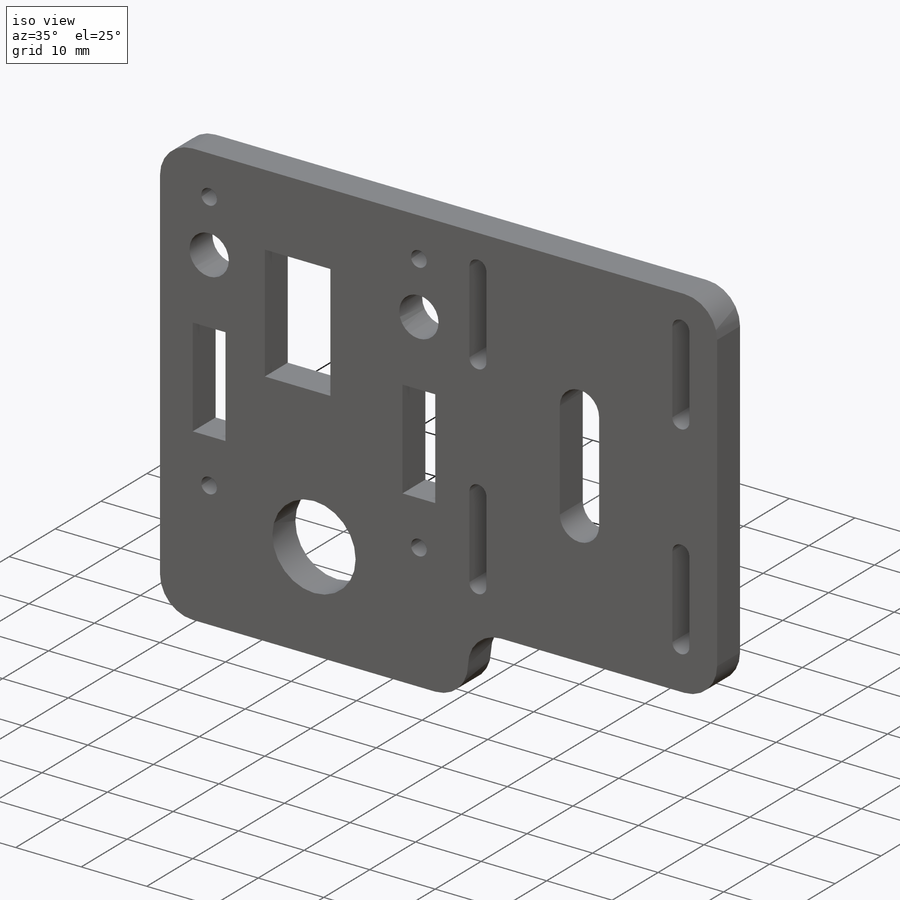
[diagram: iso view]
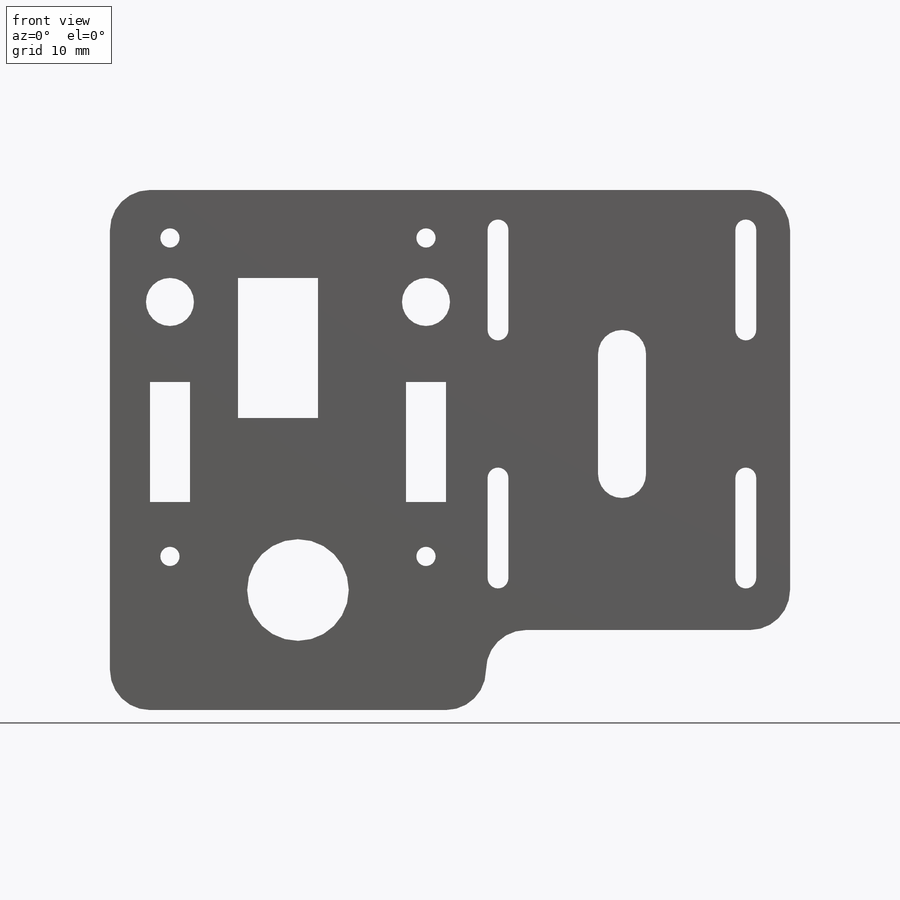
[diagram: front view]
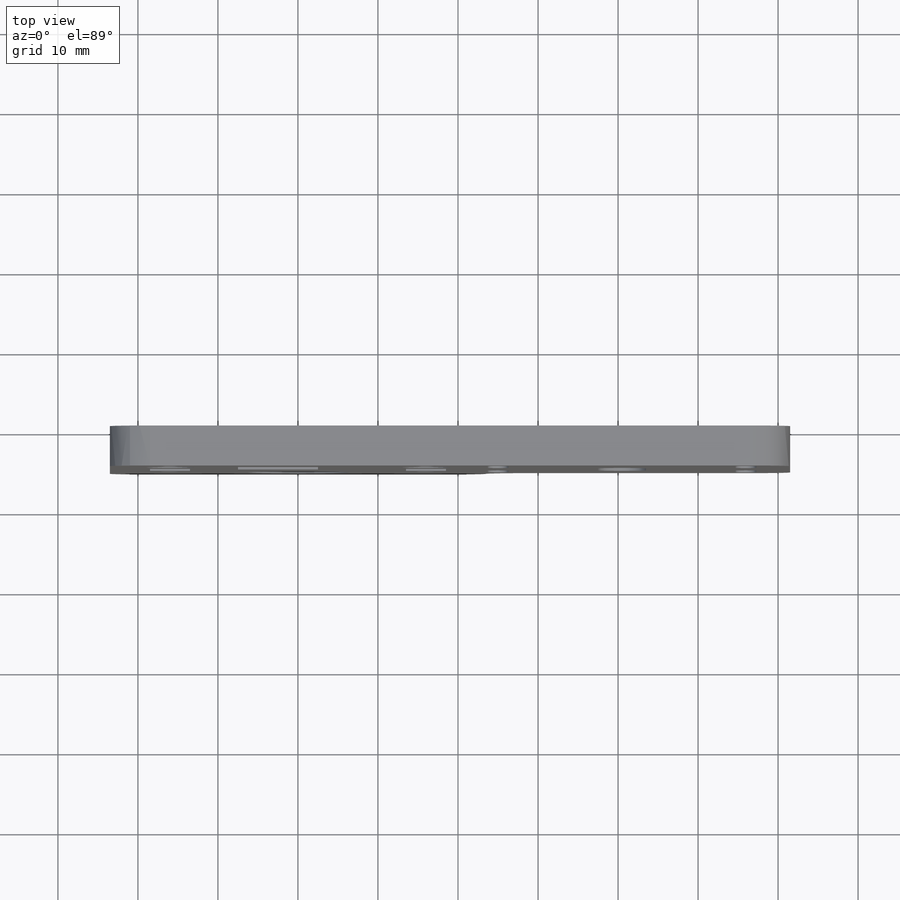
[diagram: top view]
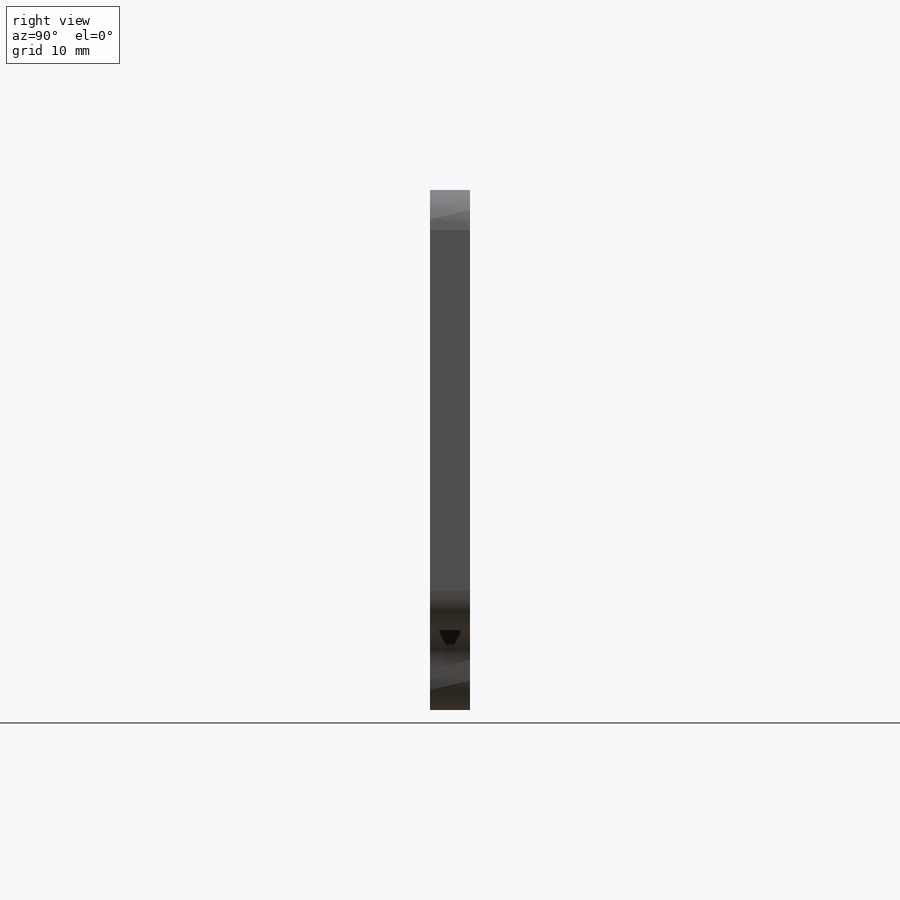
[diagram: right view]
SOLIDWORKS PART (.sldprt)
format: sldprt  version: not decoded by parser v0  size: 355,840 bytes
history: native  units: mm
features: sketch x2, extrude x2, material x1, fillet x1 (+16 scaffold rows collapsed)
feature tree (22):
  scaffold x16  (default folders/planes/origin — collapsed)
  material  "Acrylic (Medium-high impact)"
  sketch  "Sketch1"  dims[c1.D2=3.0mm c1.D3=3.0mm c1.D4=6.0mm c1.D16=12.7mm c1.D20=4.0mm c1.D22=2.0mm c1.D18=7.0mm c2.D20=1.25mm c2.D19=6.0mm c2.D21=1.5mm c3.D19=4.0mm c3.D4=2.4mm c3.D1=15.0mm c3.D5=5.0mm c3.D6=7.0mm c3.D7=8.0mm c3.D8=10.0mm c3.D9=10.0mm c3.D10=8.0mm c3.D11=6.0mm c3.D12=17.5mm c3.D13=5.0mm c3.D14=3.0mm c3.D15=23.5mm c3.D17=14.0mm c4.D6=16.0mm c4.D10=15.0mm c4.D18=25.0mm c4.D19=15.0mm c4.D21=20.0mm c4.D23=7.5mm c5.D19=10.0mm c5.D20=35.0mm c6.D19=7.0mm c6.D21=2.5mm c6.D22=11.5mm c6.D23=11.5mm c7.D22=11.5mm c7.D24=40.0mm c7.D25=23.0mm c7.D26=17.5mm c7.D12=17.5mm c7.D13=10.0mm c7.D14=6.0mm c7.D27=3.0mm c7.D28=14.0mm c7.D7=49.0mm c7.D8=50.0mm c7.D9=130.0mm c7.D10=6.0mm c7.D11=8.0mm c7.D17=10.0mm c7.D18=6.8mm c7.D20=10.0mm c8.D22=13.0mm c8.D23=10.0mm c8.D25=13.0mm c8.D26=20.0mm c8.D6=5.0mm c8.D9=15.0mm c8.D3=65.0mm c8.D24=2.0]
  extrude  "Boss-Extrude1"  Depth=5mm
  sketch  "Sketch2"  dims[c1.D2=3.0mm c1.D7=1.3mm c1.D1=38.0mm c1.D3=15.0mm c1.D4=12.5mm c1.D5=15.5mm c1.D6=15.5mm c1.D8=~3.857411mm c1.D10=55.0mm c1.D11=5.0mm c1.D12=17.0mm c1.D9=2.0 c2.D8=2.0 c2.D9=2.0]
  extrude  "Boss-Extrude2"  Depth=5mm
  fillet  "Fillet1"  Radius=5mm
decode coverage: 5 of 5 modeling features carry decoded parameters
note: ~ marks probable driven/reference dimensions
note: suppression state not decoded; provenance and decode notes live in map.json
